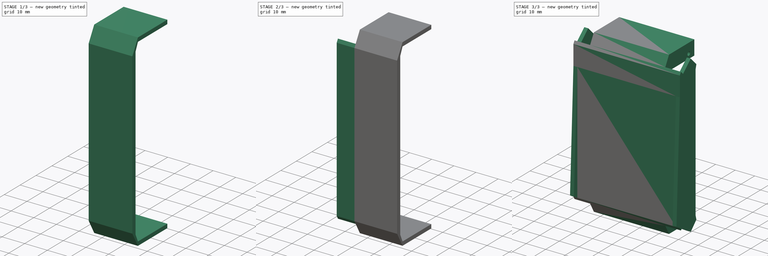
[diagram: build sequence overview — one tinted view per stage of 3, left to right]
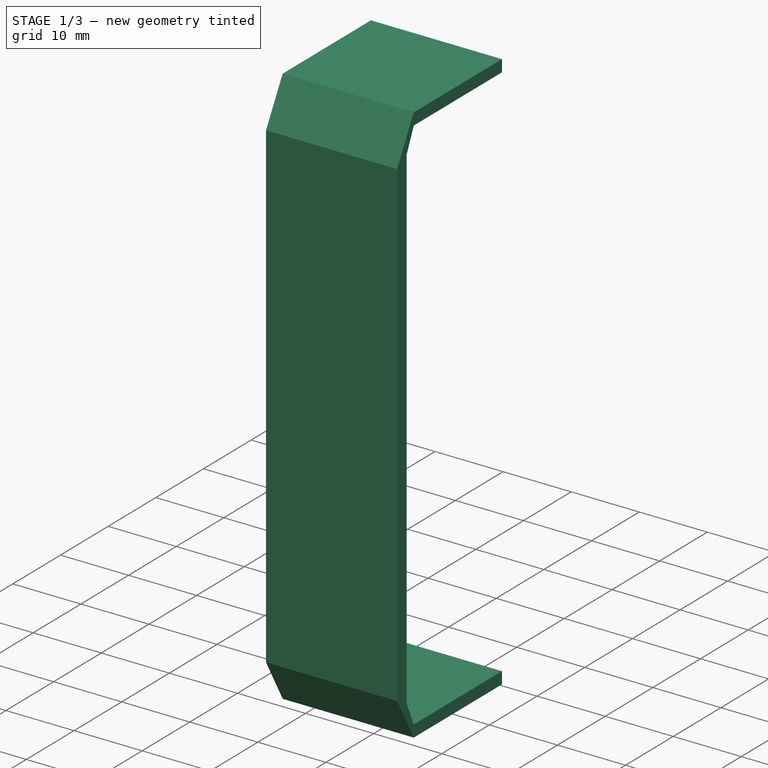
[diagram: stage 1 of 3 — iso view after this stage's code; geometry added in this stage tinted green]
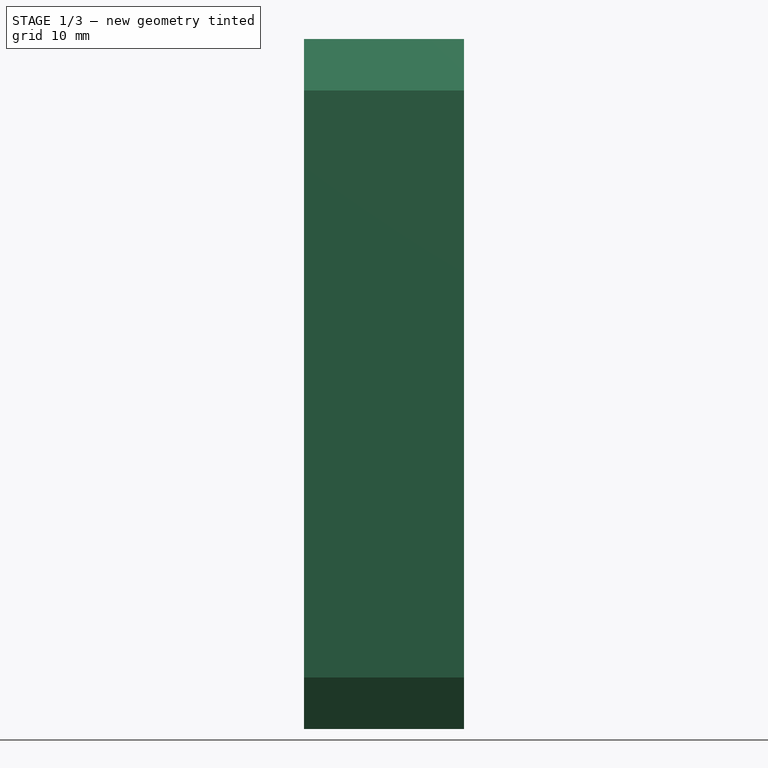
[diagram: stage 1 of 3 — front view after this stage's code; geometry added in this stage tinted green]
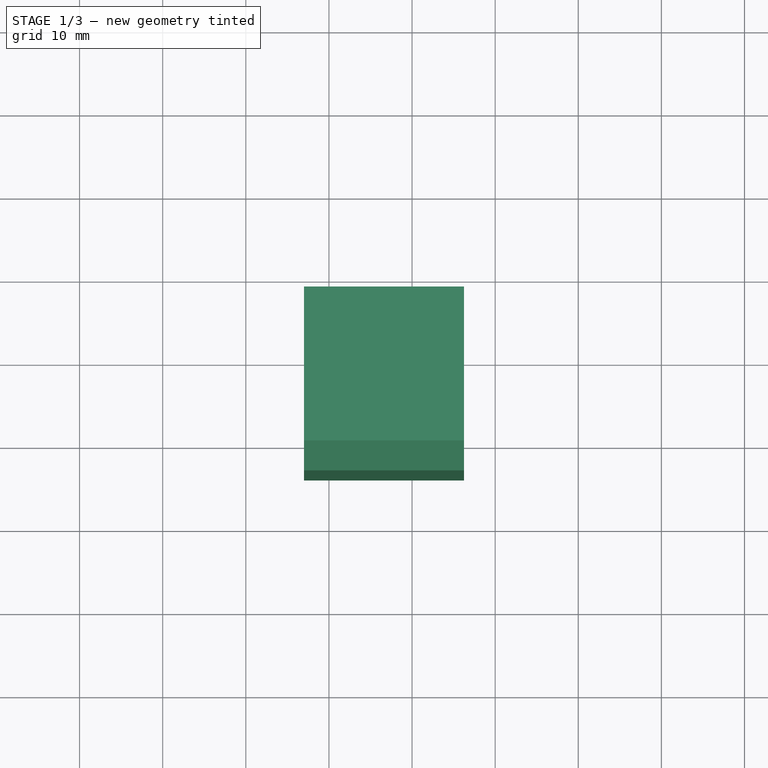
[diagram: stage 1 of 3 — top view after this stage's code; geometry added in this stage tinted green]
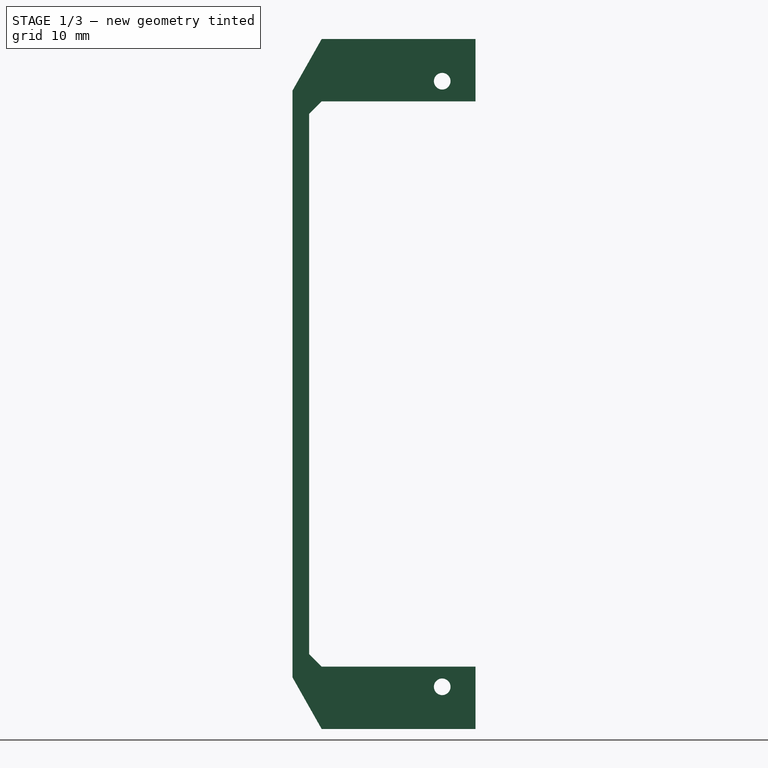
[diagram: stage 1 of 3 — right view after this stage's code; geometry added in this stage tinted green]
FCSTD DOCUMENT  (FreeCAD 0.21R33771 (Git))
Label: Leg_frame_nee2
License: All rights reserved
LicenseURL: https://en.wikipedia.org/wiki/All_rights_reserved
objects: Sketcher::SketchObject×4, PartDesign::Pad×4, PartDesign::Mirrored×1, PartDesign::Body×1
note: 14 computed .brp shape members not serialized (recipe doc carries the construction recipe); baked Part::Feature solids carry a one-line shape summary decoded from their .brp

FEATURE [Sketcher::SketchObject] Sketch
  FullyConstrained = true
  MapMode = 5
  Placement = pos=(0,0,0) rot=(0.57735,0.57735,0.57735;2.0944rad)
  Support = -> [YZ_Plane]
  sketch-geometry (22):
    g0: Circle CenterX=0 CenterY=23.5 CenterZ=0 NormalX=0 NormalY=0 NormalZ=1 AngleXU=0 Radius=16
    g1: Circle CenterX=0 CenterY=-23.5 CenterZ=0 NormalX=0 NormalY=0 NormalZ=1 AngleXU=0 Radius=16
    g2: Circle CenterX=4.00518 CenterY=36.4309 CenterZ=0 NormalX=0 NormalY=0 NormalZ=1 AngleXU=0 Radius=1
    g3: LineSegment StartX=8.00518 StartY=34 StartZ=0 EndX=8.00518 EndY=41.5 EndZ=0
    g4: LineSegment StartX=8.00518 StartY=41.5 StartZ=0 EndX=-10.5 EndY=41.5 EndZ=0
    g5: LineSegment StartX=8.00518 StartY=34 StartZ=0 EndX=-10.5 EndY=34 EndZ=0
    g6: Circle CenterX=0 CenterY=23.5 CenterZ=0 NormalX=0 NormalY=0 NormalZ=1 AngleXU=0 Radius=10.5
    g7: LineSegment StartX=-10.5 StartY=41.5 StartZ=0 EndX=-14 EndY=35.3105 EndZ=0
    g8: LineSegment StartX=-10.5 StartY=34 StartZ=0 EndX=-12 EndY=32.5 EndZ=0
    g9: LineSegment StartX=-12 StartY=32.5 StartZ=0 EndX=-12 EndY=-32.5 EndZ=0
    g10: LineSegment StartX=-12 StartY=-32.5 StartZ=0 EndX=-10.5 EndY=-34 EndZ=0
    g11: LineSegment StartX=-10.5 StartY=-34 StartZ=0 EndX=8.00518 EndY=-34 EndZ=0
    g12: LineSegment StartX=8.00518 StartY=-34 StartZ=0 EndX=8.00518 EndY=-41.5 EndZ=0
    g13: LineSegment StartX=8.00518 StartY=-41.5 StartZ=0 EndX=-10.5 EndY=-41.5 EndZ=0
    g14: LineSegment StartX=-10.5 StartY=-41.5 StartZ=0 EndX=-14 EndY=-35.3105 EndZ=0
    g15: LineSegment StartX=-14 StartY=-35.3105 StartZ=0 EndX=-14 EndY=35.3105 EndZ=0
    g16: Circle CenterX=4.00518 CenterY=-36.4309 CenterZ=0 NormalX=0 NormalY=0 NormalZ=1 AngleXU=0 Radius=1
    g17: Circle CenterX=0 CenterY=23.5 CenterZ=0 NormalX=0 NormalY=0 NormalZ=1 AngleXU=0 Radius=18
    g18: Circle CenterX=4.00518 CenterY=36.4309 CenterZ=0 NormalX=0 NormalY=0 NormalZ=1 AngleXU=0 Radius=2.5
    g19: LineSegment StartX=0 StartY=23.5 StartZ=0 EndX=0.974475 EndY=23.2755 EndZ=0
    g20: LineSegment StartX=4.00518 StartY=36.4309 StartZ=0 EndX=0.974475 EndY=23.2755 EndZ=0
    g21: LineSegment StartX=-3.59192 StartY=7.9084 StartZ=0 EndX=28.5658 EndY=0.5 EndZ=0
  constraints (56):
    c: PointOnObject(g0,g-2)
    c: Equal(g0,g1)
    c: Symmetric(g0,g1,g-1)
    c: DistanceY(g1,g0) = 47
    c: Diameter(g0) = 32
    c: Diameter(g2) = 2
    c: Vertical(g3)
    c: Coincident(g4,g3)
    c: Horizontal(g4)
    c: Coincident(g5,g3)
    c: Horizontal(g5)
    c: Coincident(g6,g0)
    c: Diameter(g6) = 21
    c: DistanceX(g2,g3) = 4
    c: Coincident(g7,g4)
    c: Coincident(g8,g5)
    c: Coincident(g9,g8)
    c: Coincident(g10,g9)
    c: Coincident(g11,g10)
    c: Coincident(g12,g11)
    c: Coincident(g13,g12)
    c: Horizontal(g13)
    c: Coincident(g14,g13)
    c: Coincident(g15,g14)
    c: Coincident(g15,g7)
    c: DistanceX(g8,g0) = 12
    c: Symmetric(g8,g9,g-1)
    c: Symmetric(g10,g5,g-1)
    c: Symmetric(g11,g3,g-1)
    c: Symmetric(g12,g3,g-1)
    c: DistanceX(g7,g8) = 2
    c: Symmetric(g14,g7,g-1)
    c: Symmetric(g16,g2,g-1)
    c: Equal(g16,g2)
    c: Coincident(g17,g0)
    c: Diameter(g17) = 36
    c: Tangent(g7,g17)
    c: Tangent(g4,g17)
    c: Coincident(g18,g2)
    c: Diameter(g18) = 5
    c: Coincident(g19,g0)
    c: Distance(g19) = 1
    c: Coincident(g20,g2)
    c: Coincident(g20,g19)
    c: Perpendicular(g19,g20)
    c: Distance(g20) = 13.5
    c: PointOnObject(g21,g0)
    c: Tangent(g21,g0)
    c: Distance(g21) = 33
    c: DistanceY(g-1,g21) = 0.5
    c: Perpendicular(g21,g20)
    c: Tangent(g5,g6)
    c: DistanceX(g5,g0) = 10.5
    c: Angle(g8,g-2) = 0.785398
    c: Vertical(g5,g4)
    c: Vertical(g10,g13)
FEATURE [PartDesign::Pad] Pad
  Direction = (1,-2e-16,3e-16)
  Length = 3
  Length2 = 10
  Placement = pos=(0,0,0) rot=(1,1,1;2.0944rad)
  Profile = -> Sketch
  ReferenceAxis = -> Sketch [N_Axis]
  Reversed = true
  Type = 0
FEATURE [Sketcher::SketchObject] Sketch002  label="Sketch001"
  ExternalGeometry = -> [Pad]
  FullyConstrained = true
  MapMode = 5
  Placement = pos=(1.7e-15,0,0) rot=(0.57735,0.57735,0.57735;2.0944rad)
  Support = -> [Pad]
  sketch-geometry (14):
    g0: Circle CenterX=0 CenterY=23.5 CenterZ=0 NormalX=0 NormalY=0 NormalZ=1 AngleXU=0 Radius=18
    g1: Circle CenterX=0 CenterY=23.5 CenterZ=0 NormalX=0 NormalY=0 NormalZ=1 AngleXU=0 Radius=16.25
    g2: LineSegment StartX=-10.5 StartY=41.5 StartZ=0 EndX=8.00518 EndY=41.5 EndZ=0
    g3: LineSegment StartX=8.00518 StartY=41.5 StartZ=0 EndX=8.00518 EndY=39.75 EndZ=0
    g4: LineSegment StartX=8.00518 StartY=39.75 StartZ=0 EndX=-10.5 EndY=39.75 EndZ=0
    g5: LineSegment StartX=-10.5 StartY=39.75 StartZ=0 EndX=-12 EndY=36.4221 EndZ=0
    g6: LineSegment StartX=-12 StartY=36.4221 StartZ=0 EndX=-12 EndY=-36.4221 EndZ=0
    g7: LineSegment StartX=-10.5 StartY=41.5 StartZ=0 EndX=-14 EndY=35.3105 EndZ=0
    g8: LineSegment StartX=-14 StartY=35.3105 StartZ=0 EndX=-14 EndY=-35.3105 EndZ=0
    g9: LineSegment StartX=-12 StartY=-36.4221 StartZ=0 EndX=-10.5 EndY=-39.75 EndZ=0
    g10: LineSegment StartX=-14 StartY=-35.3105 StartZ=0 EndX=-10.5 EndY=-41.5 EndZ=0
    g11: LineSegment StartX=-10.5 StartY=-41.5 StartZ=0 EndX=8.00518 EndY=-41.5 EndZ=0
    g12: LineSegment StartX=8.00518 StartY=-41.5 StartZ=0 EndX=8.00518 EndY=-39.75 EndZ=0
    g13: LineSegment StartX=8.00518 StartY=-39.75 StartZ=0 EndX=-10.5 EndY=-39.75 EndZ=0
  constraints (32):
    c: PointOnObject(g0,g-2)
    c: Diameter(g0) = 36
    c: Tangent(g0,g-3)
    c: Coincident(g1,g0)
    c: Diameter(g1) = 32.5
    c: Coincident(g2,g-9)
    c: Coincident(g2,g-10)
    c: Coincident(g3,g2)
    c: PointOnObject(g3,g-10)
    c: Coincident(g4,g3)
    c: Horizontal(g4)
    c: Coincident(g5,g4)
    c: Coincident(g6,g5)
    c: Coincident(g7,g2)
    c: Coincident(g7,g-4)
    c: Coincident(g8,g7)
    c: Coincident(g8,g-5)
    c: Tangent(g4,g1)
    c: Tangent(g5,g1)
    c: PointOnObject(g-8,g6)
    c: Coincident(g9,g6)
    c: Coincident(g10,g8)
    c: Coincident(g10,g-12)
    c: Coincident(g11,g10)
    c: Coincident(g11,g-12)
    c: Coincident(g12,g11)
    c: Coincident(g13,g12)
    c: Coincident(g13,g9)
    c: Symmetric(g6,g5,g-1)
    c: Symmetric(g4,g9,g-1)
    c: Symmetric(g12,g3,g-1)
    c: Vertical(g4,g-8)
FEATURE [PartDesign::Pad] Pad001
  BaseFeature = -> Pad
  Direction = (1,-4e-16,4e-16)
  Length = 16.25
  Length2 = 10
  Placement = pos=(0,0,0) rot=(1,1,1;2.0944rad)
  Profile = -> Sketch002
  ReferenceAxis = -> Sketch002 [N_Axis]
  Type = 0
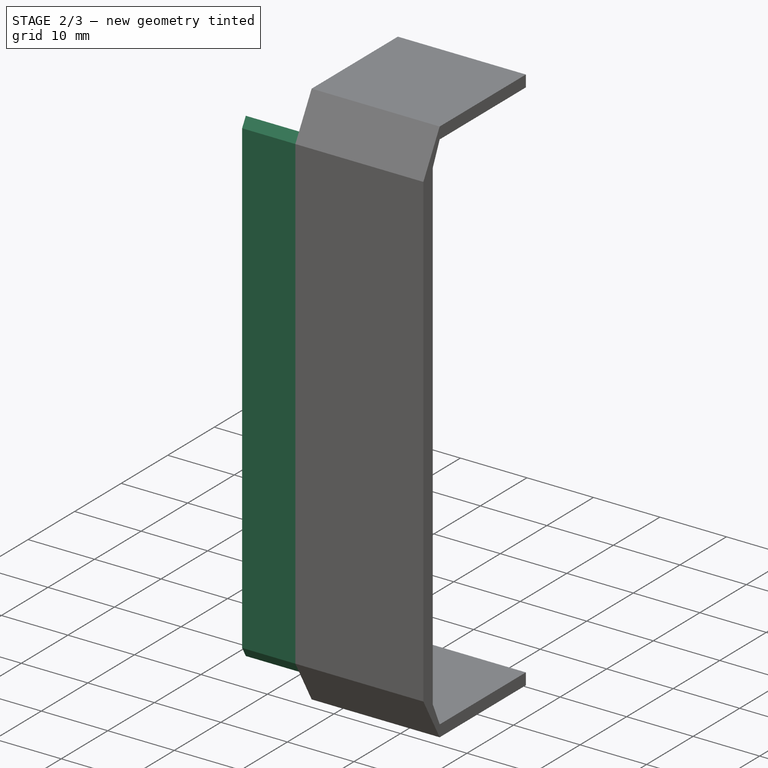
[diagram: stage 2 of 3 — iso view after this stage's code; geometry added in this stage tinted green]
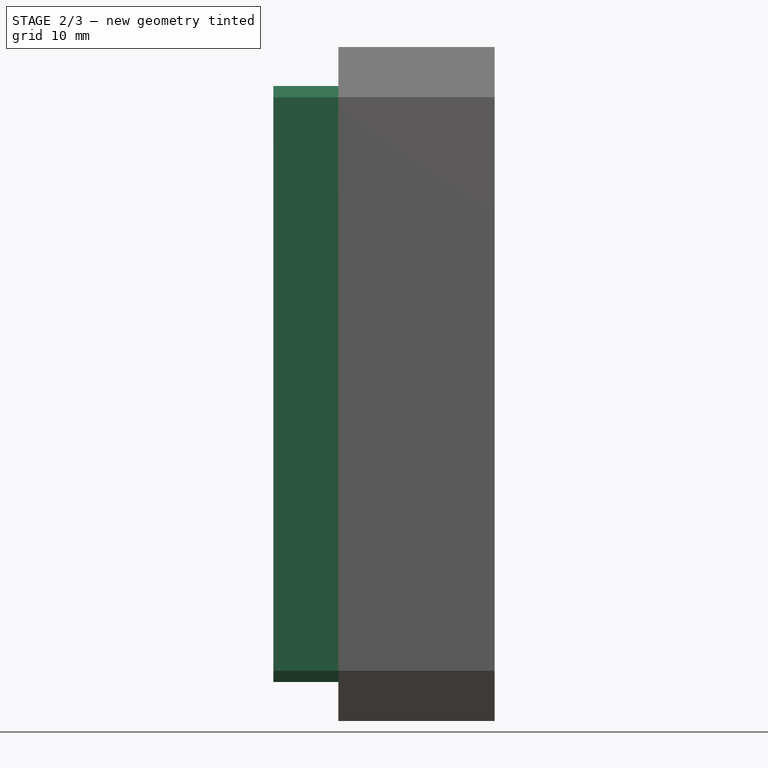
[diagram: stage 2 of 3 — front view after this stage's code; geometry added in this stage tinted green]
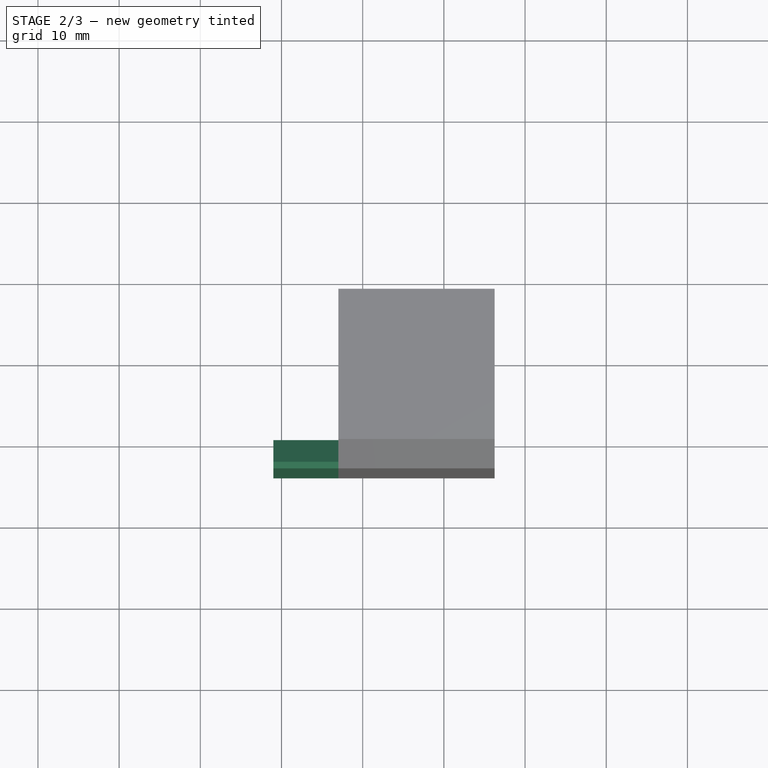
[diagram: stage 2 of 3 — top view after this stage's code; geometry added in this stage tinted green]
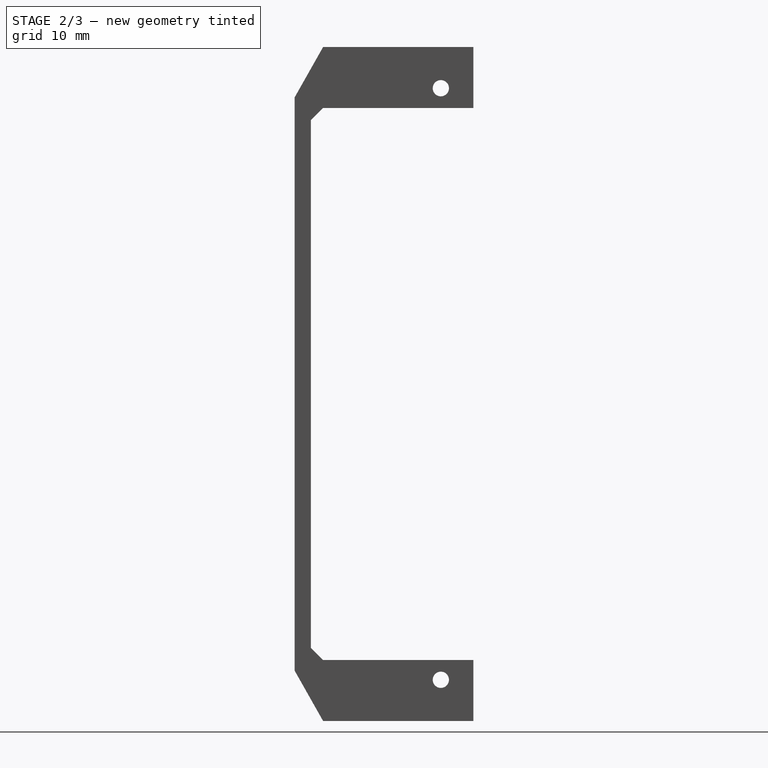
[diagram: stage 2 of 3 — right view after this stage's code; geometry added in this stage tinted green]
FEATURE [Sketcher::SketchObject] Sketch003
  ExternalGeometry = -> [Pad001]
  FullyConstrained = true
  MapMode = 5
  Placement = pos=(-3,2e-15,-1.3e-15) rot=(-0.57735,-0.57735,0.57735;2.0944rad)
  Support = -> [Pad001]
  sketch-geometry (9):
    g0: LineSegment StartX=4.00518 StartY=36.4309 StartZ=0 EndX=4.00518 EndY=-36.4309 EndZ=0
    g1: LineSegment StartX=-12 StartY=32.5 StartZ=0 EndX=-12 EndY=-32.5 EndZ=0
    g2: LineSegment StartX=-14 StartY=-35.3105 StartZ=0 EndX=-14 EndY=35.3105 EndZ=0
    g3: LineSegment StartX=-12 StartY=32.5 StartZ=0 EndX=-10.5 EndY=34 EndZ=0
    g4: LineSegment StartX=-12 StartY=-32.5 StartZ=0 EndX=-10.5 EndY=-34 EndZ=0
    g5: LineSegment StartX=-10.5 StartY=34 StartZ=0 EndX=-13.2091 EndY=36.7091 EndZ=0
    g6: LineSegment StartX=-14 StartY=35.3105 StartZ=0 EndX=-13.2091 EndY=36.7091 EndZ=0
    g7: LineSegment StartX=-10.5 StartY=-34 StartZ=0 EndX=-13.2091 EndY=-36.7091 EndZ=0
    g8: LineSegment StartX=-13.2091 StartY=-36.7091 StartZ=0 EndX=-14 EndY=-35.3105 EndZ=0
  constraints (20):
    c: Coincident(g0,g-4)
    c: Coincident(g0,g-3)
    c: Coincident(g1,g-5)
    c: Coincident(g1,g-5)
    c: Coincident(g2,g-6)
    c: Coincident(g2,g-10)
    c: Coincident(g3,g1)
    c: Coincident(g4,g1)
    c: Coincident(g4,g-9)
    c: Coincident(g5,g3)
    c: PointOnObject(g5,g-10)
    c: Coincident(g6,g2)
    c: Coincident(g6,g5)
    c: Coincident(g7,g4)
    c: PointOnObject(g7,g-8)
    c: Coincident(g8,g7)
    c: Coincident(g8,g2)
    c: Coincident(g3,g-7)
    c: Perpendicular(g3,g5)
    c: Perpendicular(g4,g7)
FEATURE [PartDesign::Pad] Pad002
  BaseFeature = -> Pad001
  Direction = (-1,6e-16,-5e-16)
  Length = 8
  Length2 = 10
  Placement = pos=(0,0,0) rot=(1,1,1;2.0944rad)
  Profile = -> Sketch003
  ReferenceAxis = -> Sketch003 [N_Axis]
  Type = 0
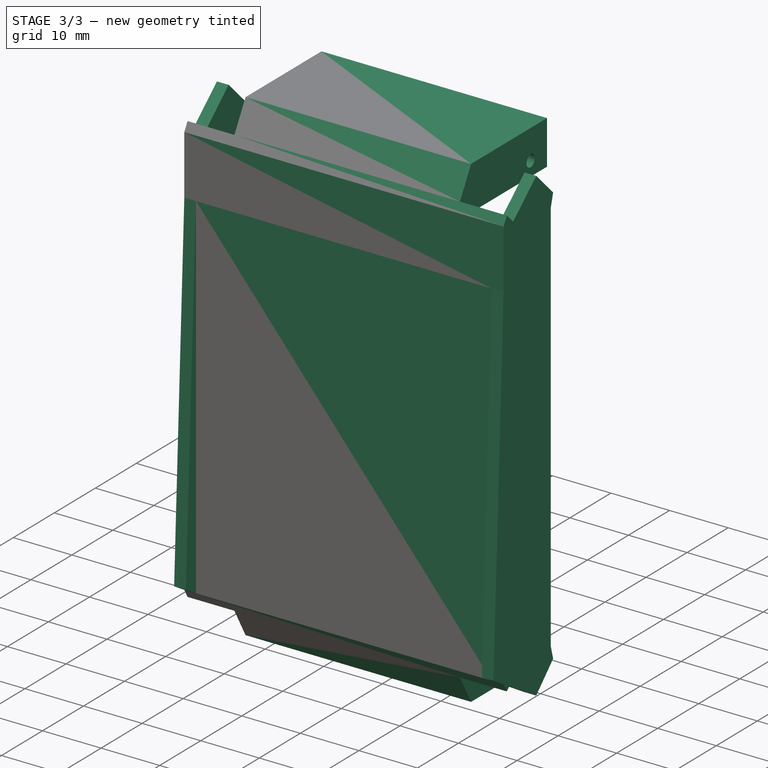
[diagram: stage 3 of 3 — iso view after this stage's code; geometry added in this stage tinted green]
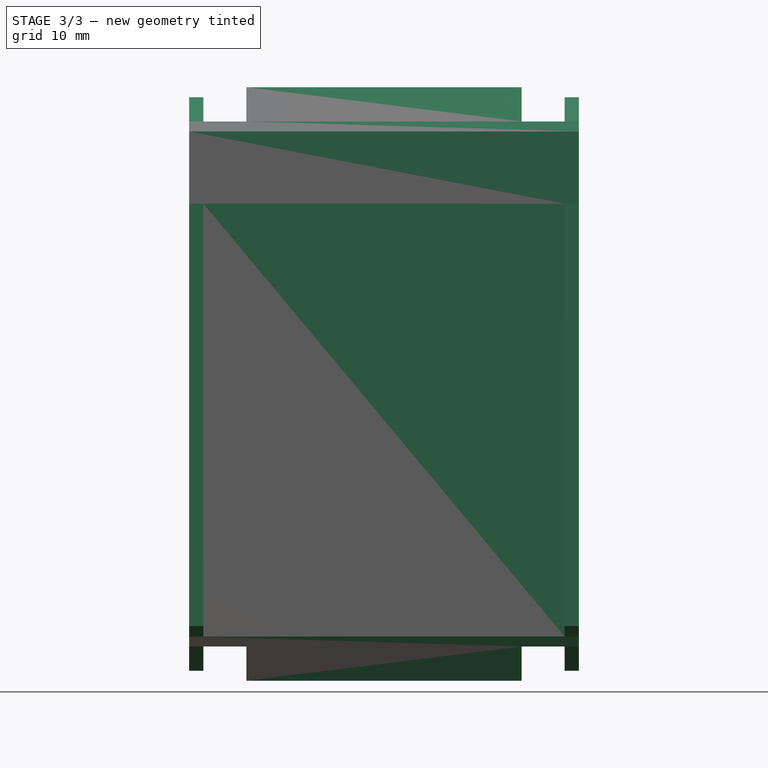
[diagram: stage 3 of 3 — front view after this stage's code; geometry added in this stage tinted green]
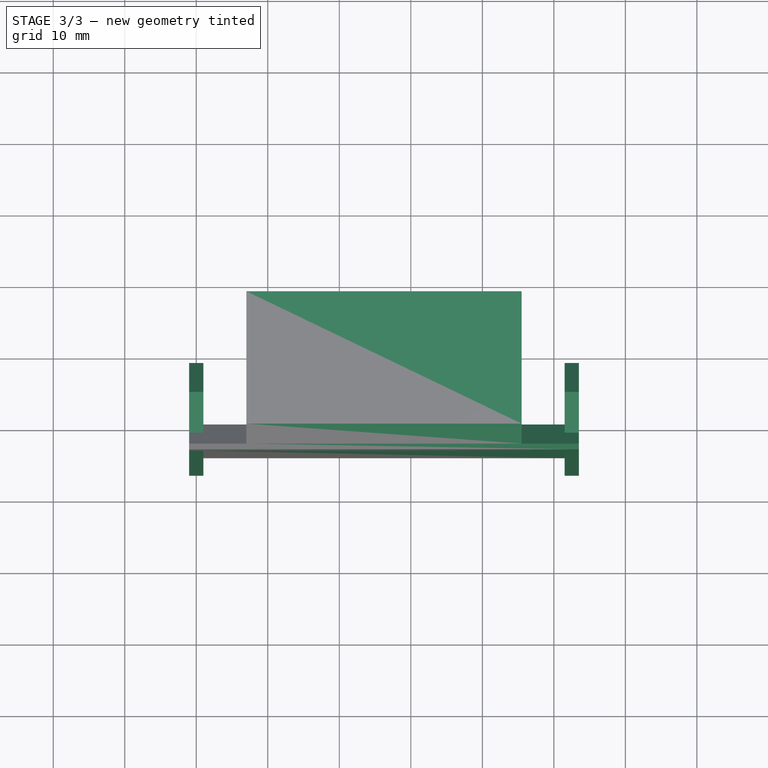
[diagram: stage 3 of 3 — top view after this stage's code; geometry added in this stage tinted green]
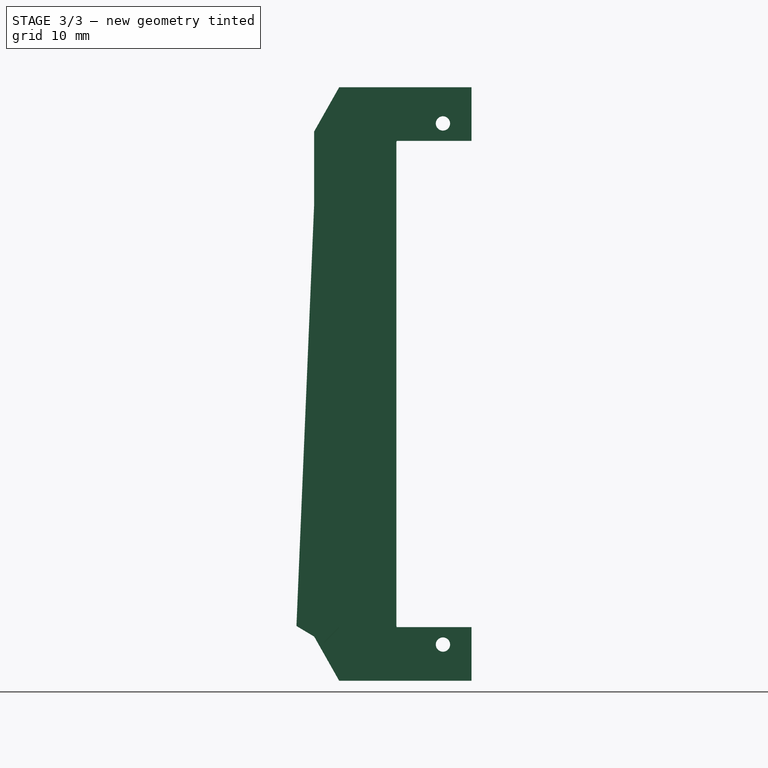
[diagram: stage 3 of 3 — right view after this stage's code; geometry added in this stage tinted green]
FEATURE [Sketcher::SketchObject] Sketch004
  FullyConstrained = false
  MapMode = 5
  Placement = pos=(-11,7.7e-15,-6.1e-15) rot=(-0.57735,-0.57735,0.57735;2.0944rad)
  Support = -> [Pad002]
  sketch-geometry (9):
    g0: LineSegment StartX=-6.04163 StartY=40.0858 StartZ=0 EndX=-16.479 EndY=33.8288 EndZ=0
    g1: LineSegment StartX=-16.479 StartY=33.8288 StartZ=0 EndX=-13.6552 EndY=-33.405 EndZ=0
    g2: LineSegment StartX=-13.6552 StartY=-33.405 StartZ=0 EndX=-6.04163 EndY=-40.0858 EndZ=0
    g3: LineSegment StartX=-6.04163 StartY=40.0858 StartZ=0 EndX=-1.92625 EndY=35.9704 EndZ=0
    g4: LineSegment StartX=-1.92625 StartY=35.9704 StartZ=0 EndX=-2.5 EndY=33.8291 EndZ=0
    g5: LineSegment StartX=-2.5 StartY=33.8291 StartZ=0 EndX=-2.5 EndY=-33.8291 EndZ=0
    g6: LineSegment StartX=-2.5 StartY=-33.8291 StartZ=0 EndX=-1.92625 EndY=-35.9704 EndZ=0
    g7: LineSegment StartX=-1.92625 StartY=-35.9704 StartZ=0 EndX=-6.04163 EndY=-40.0858 EndZ=0
    g8: Circle CenterX=0 CenterY=33.5 CenterZ=0 NormalX=0 NormalY=0 NormalZ=1 AngleXU=0 Radius=2.5
  constraints (16):
    c: Coincident(g1,g0)
    c: Coincident(g2,g1)
    c: Coincident(g3,g0)
    c: Coincident(g4,g3)
    c: Coincident(g5,g4)
    c: Coincident(g6,g5)
    c: Coincident(g7,g6)
    c: Coincident(g7,g2)
    c: Symmetric(g4,g5,g-1)
    c: Symmetric(g6,g3,g-1)
    c: PointOnObject(g8,g-2)
    c: Diameter(g8) = 5
    c: DistanceY(g-1,g8) = 33.5
    c: Tangent(g4,g8)
    c: Tangent(g5,g8)
    c: Angle(g5,g4) = 2.87979
FEATURE [PartDesign::Pad] Pad003
  BaseFeature = -> Pad002
  Direction = (-1,7e-16,-6e-16)
  Length = 2
  Length2 = 10
  Placement = pos=(0,0,0) rot=(1,1,1;2.0944rad)
  Profile = -> Sketch004
  ReferenceAxis = -> Sketch004 [N_Axis]
  Refine = true
  Reversed = true
  Type = 0
FEATURE [PartDesign::Mirrored] Mirrored
  BaseFeature = -> Pad003
  MirrorPlane = -> Pad003 [Face7]
  Originals = -> [Pad,Pad001,Pad002,Pad003]
  Placement = pos=(0,0,0) rot=(1,1,1;2.0944rad)
  Refine = true
FEATURE [PartDesign::Body] Body
  Group = -> [Sketch,Pad,Sketch002,Pad001,Sketch003,Pad002,Sketch004,Pad003,Mirrored]
  Origin = -> Origin
  Tip = -> Mirrored
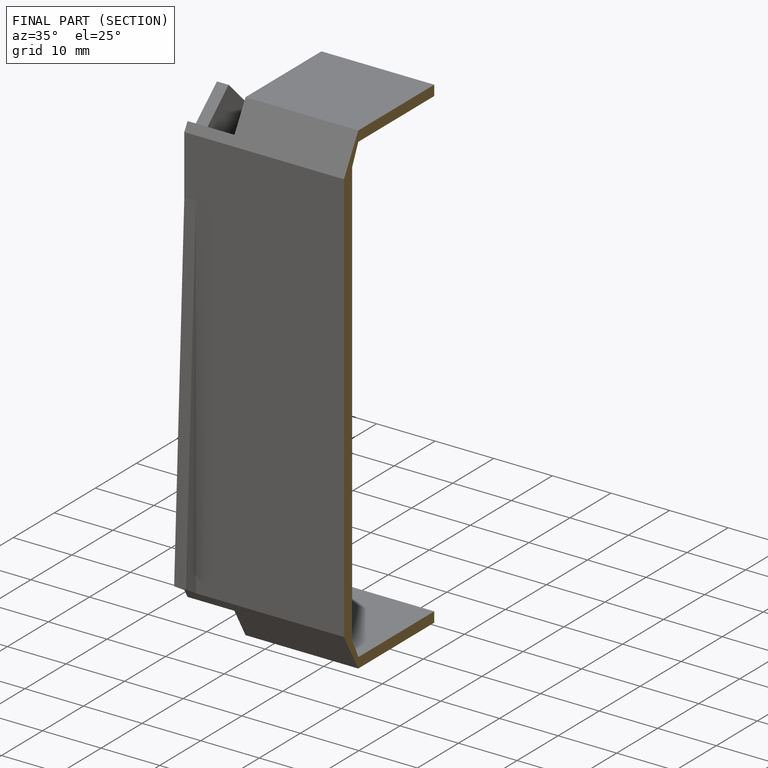
[diagram: finished part — half-section view (interior)]
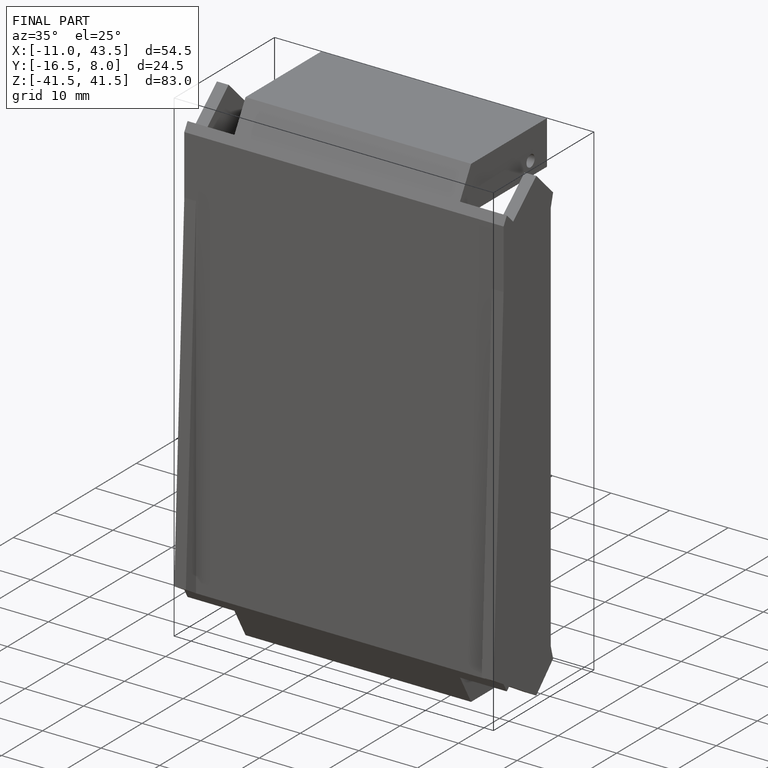
[diagram: finished part — iso view with bounding-box wireframe]
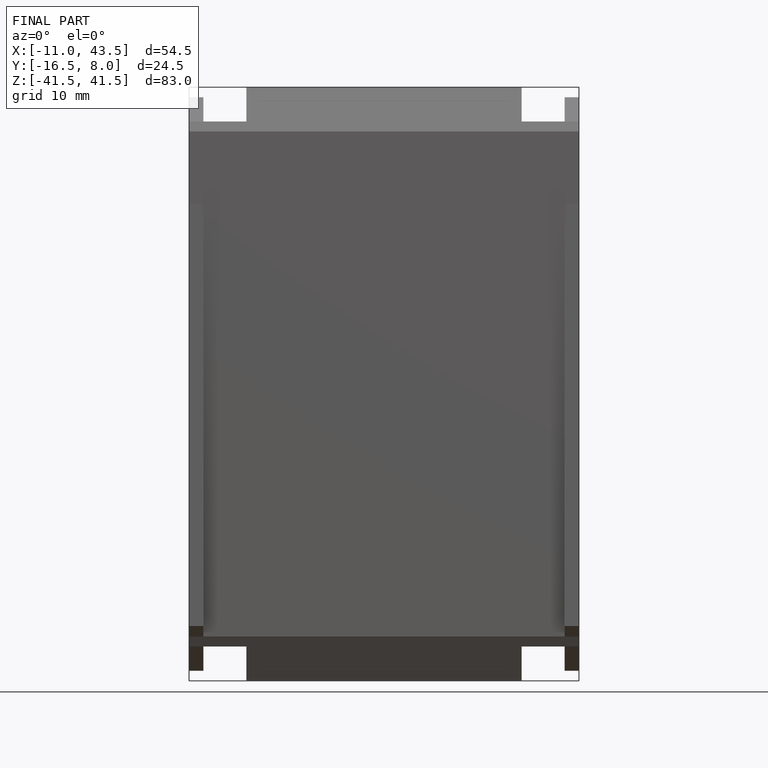
[diagram: finished part — front view with bounding-box wireframe]
